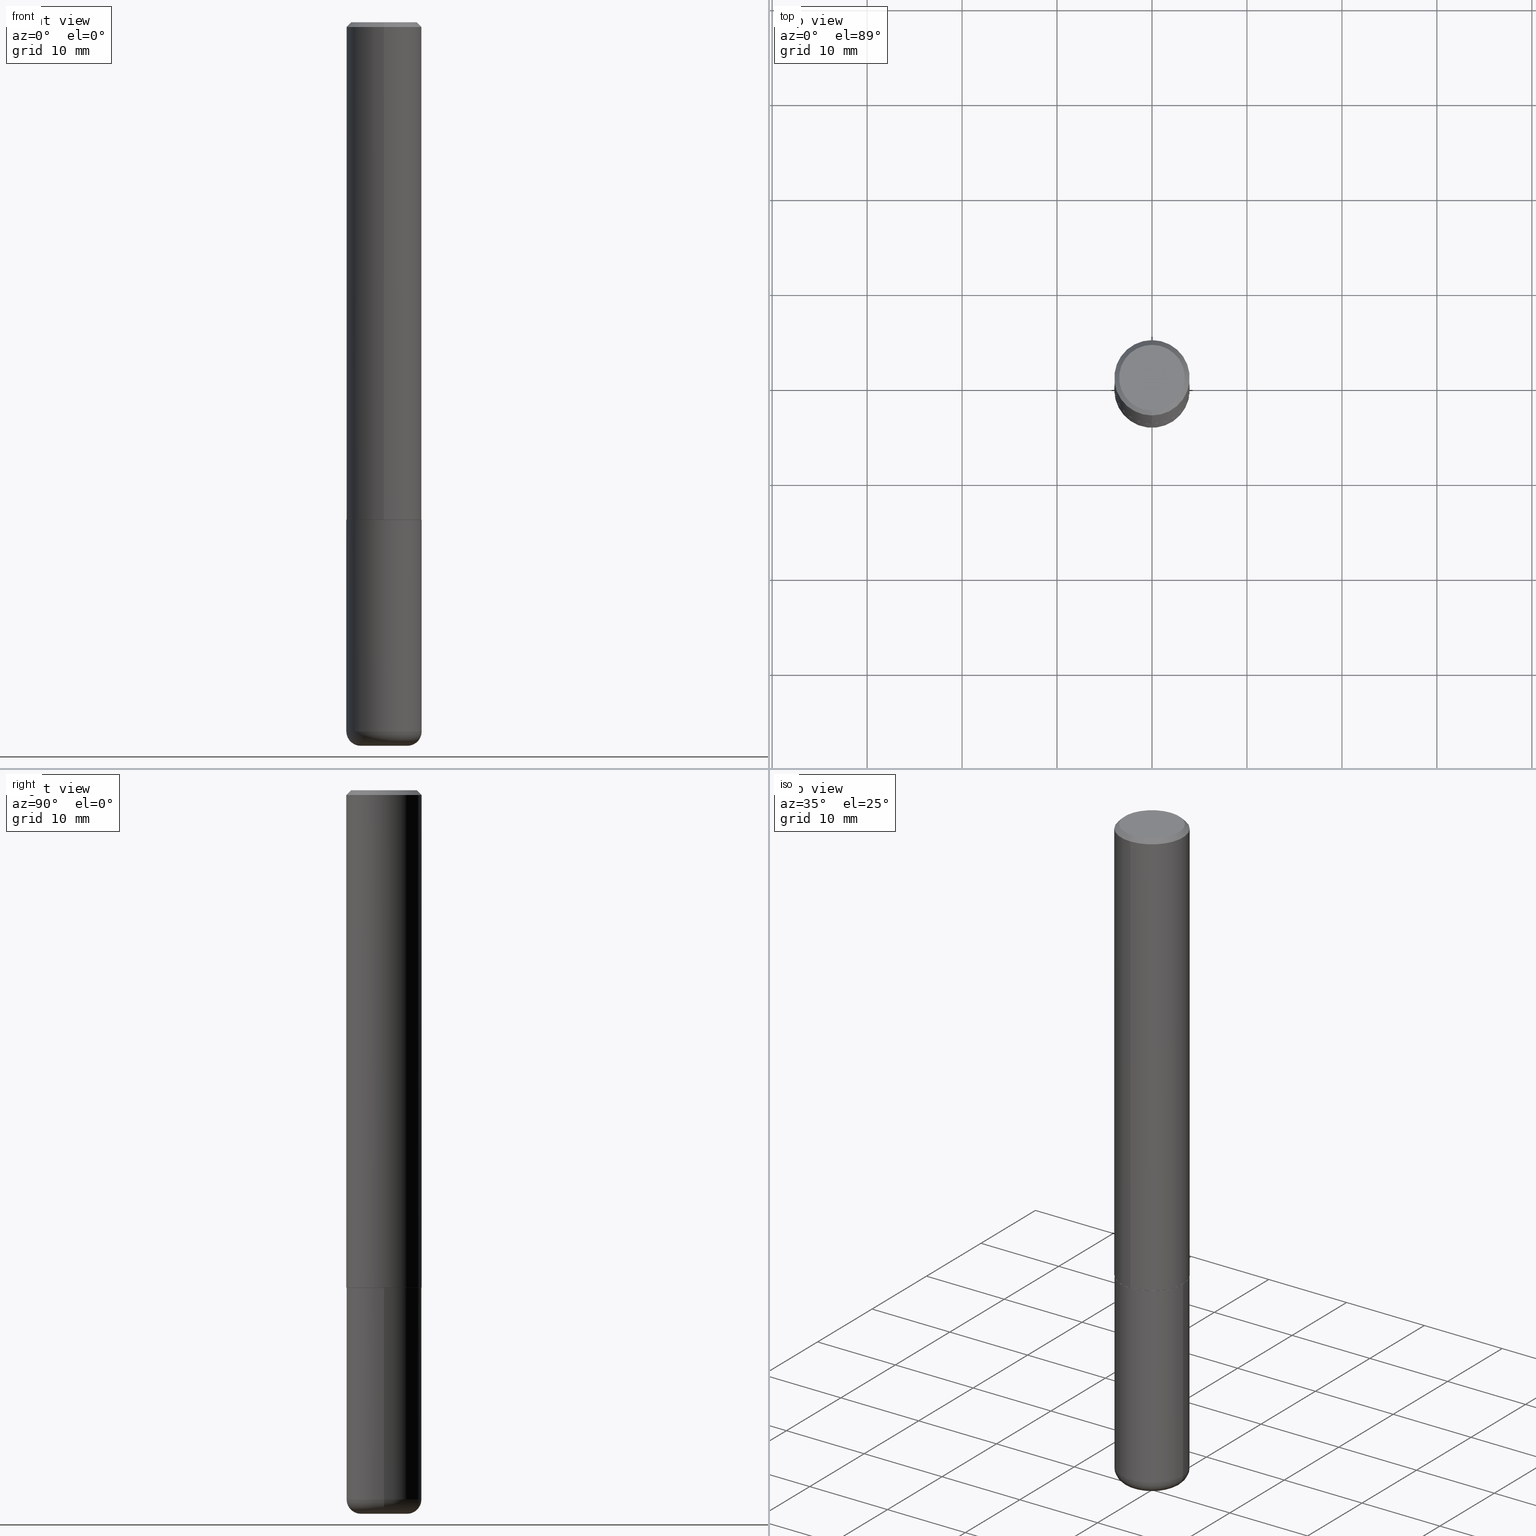
[diagram: canonical four-view strip — front | top / right | iso, engineering-drawing reading convention]
A machine part, canonical four-view strip (front | top / right | iso — engineering-drawing reading convention). The complete STEP part file that produces these views, byte-faithful:
ISO-10303-21;
HEADER;
FILE_DESCRIPTION (( 'STEP AP203' ),
    '1' );
FILE_NAME ('37463.STEP',
    '2024-03-02T01:55:20',
    ( '' ),
    ( '' ),
    'SwSTEP 2.0',
    'SolidWorks 2023',
    '' );
FILE_SCHEMA (( 'CONFIG_CONTROL_DESIGN' ));
ENDSEC;

DATA;
#1 = CIRCLE ( 'NONE', #283, 0.1562500000000000000 ) ;
#2 = AXIS2_PLACEMENT_3D ( 'NONE', #108, #173, #365 ) ;
#3 = PERSON_AND_ORGANIZATION_ROLE ( 'creator' ) ;
#4 = ADVANCED_FACE ( 'NONE', ( #163 ), #45, .F. ) ;
#5 = DATE_AND_TIME ( #9, #321 ) ;
#6 =( LENGTH_UNIT ( ) NAMED_UNIT ( * ) SI_UNIT ( $, .METRE. ) );
#7 = CARTESIAN_POINT ( 'NONE',  ( 5.043175630159489045E-29, -7.202044912408573467E-15, -2.062500000000000000 ) ) ;
#8 = VECTOR ( 'NONE', #264, 39.37007874015748143 ) ;
#9 = CALENDAR_DATE ( 2024, 1, 3 ) ;
#10 = EDGE_CURVE ( 'NONE', #331, #301, #122, .T. ) ;
#11 = PLANE ( 'NONE',  #194 ) ;
#12 = CARTESIAN_POINT ( 'NONE',  ( 5.040730454096381281E-29, -7.198553011844980434E-15, -2.061500000000000110 ) ) ;
#13 = EDGE_LOOP ( 'NONE', ( #408, #228 ) ) ;
#14 = DIRECTION ( 'NONE',  ( 1.000000000000000000, -6.982962677686269077E-15, 0.000000000000000000 ) ) ;
#15 = AXIS2_PLACEMENT_3D ( 'NONE', #292, #364, #333 ) ;
#16 = AXIS2_PLACEMENT_3D ( 'NONE', #272, #401, #80 ) ;
#17 = FACE_OUTER_BOUND ( 'NONE', #13, .T. ) ;
#18 = CARTESIAN_POINT ( 'NONE',  ( 0.09625000000000000222, -1.114655417425673968E-14, -3.000000000000000444 ) ) ;
#19 = ORIENTED_EDGE ( 'NONE', *, *, #10, .T. ) ;
#20 = DIRECTION ( 'NONE',  ( -2.445468806185136597E-29, 3.491481338843145583E-15, 1.000000000000000000 ) ) ;
#21 = LINE ( 'NONE', #343, #340 ) ;
#22 = ORIENTED_EDGE ( 'NONE', *, *, #295, .T. ) ;
#23 = AXIS2_PLACEMENT_3D ( 'NONE', #119, #376, #87 ) ;
#24 = EDGE_CURVE ( 'NONE', #301, #331, #1, .T. ) ;
#25 = AXIS2_PLACEMENT_3D ( 'NONE', #207, #49, #403 ) ;
#26 = PERSON_AND_ORGANIZATION_ROLE ( 'creator' ) ;
#27 = ORIENTED_EDGE ( 'NONE', *, *, #53, .T. ) ;
#28 = ORIENTED_EDGE ( 'NONE', *, *, #184, .T. ) ;
#29 = CARTESIAN_POINT ( 'NONE',  ( 0.1562499999999999722, -1.135604305458732800E-14, -2.940000000000000391 ) ) ;
#30 = AXIS2_PLACEMENT_3D ( 'NONE', #328, #110, #405 ) ;
#31 = CIRCLE ( 'NONE', #16, 0.05999999999999994227 ) ;
#32 = ORIENTED_EDGE ( 'NONE', *, *, #285, .F. ) ;
#33 = ADVANCED_FACE ( 'NONE', ( #298 ), #11, .F. ) ;
#34 = ADVANCED_FACE ( 'NONE', ( #17 ), #62, .F. ) ;
#35 = AXIS2_PLACEMENT_3D ( 'NONE', #12, #267, #396 ) ;
#36 = DIRECTION ( 'NONE',  ( -2.445176063107631214E-29, 3.491900563592034843E-15, 1.000000000000000000 ) ) ;
#37 = CARTESIAN_POINT ( 'NONE',  ( -1.091087918388430659E-15, -0.1562500000000074940, -2.061499999999999666 ) ) ;
#38 = EDGE_CURVE ( 'NONE', #117, #346, #353, .T. ) ;
#39 = DIRECTION ( 'NONE',  ( 2.438088387897960049E-29, -3.491481338843145188E-15, -1.000000000000000000 ) ) ;
#40 = PRODUCT_DEFINITION_FORMATION_WITH_SPECIFIED_SOURCE ( 'ANY', '', #417, .NOT_KNOWN. ) ;
#41 = CARTESIAN_POINT ( 'NONE',  ( 9.514286648347545493E-16, 0.1362500000000001210, -5.205622732494513937E-16 ) ) ;
#42 = VERTEX_POINT ( 'NONE', #137 ) ;
#43 = CARTESIAN_POINT ( 'NONE',  ( 1.106670310946407312E-15, 0.1552499999999928104, -2.062500000000000888 ) ) ;
#44 = ORIENTED_EDGE ( 'NONE', *, *, #24, .T. ) ;
#45 = PLANE ( 'NONE',  #94 ) ;
#46 = DIRECTION ( 'NONE',  ( 6.982962677686265133E-15, 1.000000000000000000, -3.496765431890256920E-15 ) ) ;
#47 = EDGE_LOOP ( 'NONE', ( #32, #19, #315, #192 ) ) ;
#48 = AXIS2_PLACEMENT_3D ( 'NONE', #238, #235, #14 ) ;
#49 = DIRECTION ( 'NONE',  ( -2.445468806185136597E-29, 3.491481338843145583E-15, 1.000000000000000000 ) ) ;
#50 = ORIENTED_EDGE ( 'NONE', *, *, #96, .F. ) ;
#51 = DIRECTION ( 'NONE',  ( -6.982962677686265922E-15, -1.000000000000000000, 3.519288880726909138E-15 ) ) ;
#52 = EDGE_LOOP ( 'NONE', ( #224, #273, #262, #198 ) ) ;
#53 = EDGE_CURVE ( 'NONE', #313, #181, #231, .T. ) ;
#54 = ORIENTED_EDGE ( 'NONE', *, *, #184, .F. ) ;
#55 = APPLICATION_PROTOCOL_DEFINITION ( 'international standard', 'config_control_design', 1994, #223 ) ;
#56 = CYLINDRICAL_SURFACE ( 'NONE', #196, 0.1562500000000000000 ) ;
#57 = EDGE_LOOP ( 'NONE', ( #78, #332, #252, #76 ) ) ;
#58 = APPROVAL ( #393, 'UNSPECIFIED' ) ;
#59 = AXIS2_PLACEMENT_3D ( 'NONE', #107, #209, #361 ) ;
#60 = CARTESIAN_POINT ( 'NONE',  ( 0.09625000000000000222, -1.093706529392615137E-14, -2.940000000000000391 ) ) ;
#61 = CC_DESIGN_PERSON_AND_ORGANIZATION_ASSIGNMENT ( #412, #375, ( #128 ) ) ;
#62 = PLANE ( 'NONE',  #271 ) ;
#63 = PERSON_AND_ORGANIZATION ( #200, #160 ) ;
#64 = CARTESIAN_POINT ( 'NONE',  ( 1.110223024625157329E-15, 0.1562500000000001388, -5.456094630612559989E-16 ) ) ;
#65 = LINE ( 'NONE', #299, #8 ) ;
#66 = CARTESIAN_POINT ( 'NONE',  ( 0.000000000000000000, 0.000000000000000000, 0.000000000000000000 ) ) ;
#67 = VECTOR ( 'NONE', #91, 39.37007874015748854 ) ;
#68 = AXIS2_PLACEMENT_3D ( 'NONE', #116, #93, #239 ) ;
#69 = LOCAL_TIME ( 20, 55, 20.00000000000000000, #359 ) ;
#70 = CARTESIAN_POINT ( 'NONE',  ( 1.091087918388479568E-15, 0.1562499999999999445, -0.02000000000000057981 ) ) ;
#71 = DIRECTION ( 'NONE',  ( -2.445176063107630933E-29, 3.491900563592034843E-15, 1.000000000000000000 ) ) ;
#72 = EDGE_LOOP ( 'NONE', ( #54, #102, #282, #280 ) ) ;
#73 = EDGE_CURVE ( 'NONE', #311, #149, #142, .T. ) ;
#74 = PERSON_AND_ORGANIZATION ( #200, #160 ) ;
#75 = CARTESIAN_POINT ( 'NONE',  ( -0.09625000000000000222, -9.472639372467016689E-15, -3.000000000000000444 ) ) ;
#76 = ORIENTED_EDGE ( 'NONE', *, *, #395, .T. ) ;
#77 = DIRECTION ( 'NONE',  ( 2.445176063107630933E-29, -3.491900563592034843E-15, -1.000000000000000000 ) ) ;
#78 = ORIENTED_EDGE ( 'NONE', *, *, #202, .F. ) ;
#79 = FACE_OUTER_BOUND ( 'NONE', #111, .T. ) ;
#80 = DIRECTION ( 'NONE',  ( -1.000000000000000000, 7.105427357600997914E-15, 0.000000000000000000 ) ) ;
#81 = ADVANCED_FACE ( 'NONE', ( #144 ), #383, .T. ) ;
#82 = APPROVAL_STATUS ( 'not_yet_approved' ) ;
#83 = PERSON_AND_ORGANIZATION_ROLE ( 'design_owner' ) ;
#84 = DIRECTION ( 'NONE',  ( 1.000000000000000000, -6.982962677686265922E-15, 4.883557194083112340E-29 ) ) ;
#85 = ORIENTED_EDGE ( 'NONE', *, *, #246, .T. ) ;
#86 = CARTESIAN_POINT ( 'NONE',  ( 0.000000000000000000, 0.000000000000000000, 0.000000000000000000 ) ) ;
#87 = DIRECTION ( 'NONE',  ( -6.982962677686265922E-15, -1.000000000000000000, 3.491900563592035238E-15 ) ) ;
#88 = SECURITY_CLASSIFICATION_LEVEL ( 'unclassified' ) ;
#89 = ORIENTED_EDGE ( 'NONE', *, *, #347, .F. ) ;
#90 = CARTESIAN_POINT ( 'NONE',  ( 7.336406418555409790E-29, -1.047444401652943635E-14, -3.000000000000000444 ) ) ;
#91 = DIRECTION ( 'NONE',  ( 5.024295867787889629E-15, 0.7071067811865257013, 0.7071067811865691111 ) ) ;
#92 = CC_DESIGN_APPROVAL ( #303, ( #319 ) ) ;
#93 = DIRECTION ( 'NONE',  ( -2.445176063107630933E-29, 3.491900563592034843E-15, 1.000000000000000000 ) ) ;
#94 = AXIS2_PLACEMENT_3D ( 'NONE', #201, #39, #366 ) ;
#95 = CIRCLE ( 'NONE', #2, 0.1562500000000000000 ) ;
#96 = EDGE_CURVE ( 'NONE', #301, #181, #65, .T. ) ;
#97 =( NAMED_UNIT ( * ) PLANE_ANGLE_UNIT ( ) SI_UNIT ( $, .RADIAN. ) );
#98 = FACE_OUTER_BOUND ( 'NONE', #47, .T. ) ;
#99 = TOROIDAL_SURFACE ( 'NONE', #225, 0.09625000000000000222, 0.05999999999999995615 ) ;
#100 = DIRECTION ( 'NONE',  ( -2.445468806185136597E-29, 3.491481338843145583E-15, 1.000000000000000000 ) ) ;
#101 = DIRECTION ( 'NONE',  ( 1.000000000000000000, -6.982962677686266711E-15, 4.876176775795936353E-29 ) ) ;
#102 = ORIENTED_EDGE ( 'NONE', *, *, #221, .T. ) ;
#103 = DIRECTION ( 'NONE',  ( -2.445176063107630933E-29, 3.491900563592034843E-15, 1.000000000000000000 ) ) ;
#104 = AXIS2_PLACEMENT_3D ( 'NONE', #349, #339, #183 ) ;
#105 = AXIS2_PLACEMENT_3D ( 'NONE', #300, #141, #145 ) ;
#106 = PRODUCT_RELATED_PRODUCT_CATEGORY ( 'detail', '', ( #417 ) ) ;
#107 = CARTESIAN_POINT ( 'NONE',  ( 2.190428889620163364E-45, -3.128101894001013777E-31, -8.958164292007245599E-17 ) ) ;
#108 = CARTESIAN_POINT ( 'NONE',  ( 4.890352126215269679E-31, -6.983801127184080238E-17, -0.02000000000000003511 ) ) ;
#109 = EDGE_LOOP ( 'NONE', ( #125, #27 ) ) ;
#110 = DIRECTION ( 'NONE',  ( -2.445176063107630933E-29, 3.491900563592034843E-15, 1.000000000000000000 ) ) ;
#111 = EDGE_LOOP ( 'NONE', ( #44, #269, #89, #50 ) ) ;
#112 = FACE_OUTER_BOUND ( 'NONE', #146, .T. ) ;
#113 = ORIENTED_EDGE ( 'NONE', *, *, #279, .F. ) ;
#114 = CARTESIAN_POINT ( 'NONE',  ( 2.190428889620163364E-45, -3.128101894001013777E-31, -8.958164292007245599E-17 ) ) ;
#115 = MECHANICAL_CONTEXT ( 'NONE', #352, 'mechanical' ) ;
#116 = CARTESIAN_POINT ( 'NONE',  ( 5.043175630159490166E-29, -7.202044912408575044E-15, -2.062500000000000444 ) ) ;
#117 = VERTEX_POINT ( 'NONE', #75 ) ;
#118 = DATE_AND_TIME ( #351, #135 ) ;
#119 = CARTESIAN_POINT ( 'NONE',  ( 0.000000000000000000, 0.000000000000000000, 0.000000000000000000 ) ) ;
#120 = APPROVAL_ROLE ( '' ) ;
#121 = EDGE_CURVE ( 'NONE', #368, #247, #180, .T. ) ;
#122 = CIRCLE ( 'NONE', #380, 0.1562500000000000000 ) ;
#123 = CONICAL_SURFACE ( 'NONE', #167, 0.1562500000000000000, 0.7853981633974469467 ) ;
#124 = COORDINATED_UNIVERSAL_TIME_OFFSET ( 5, 0, .BEHIND. ) ;
#125 = ORIENTED_EDGE ( 'NONE', *, *, #347, .T. ) ;
#126 = ADVANCED_FACE ( 'NONE', ( #392 ), #305, .T. ) ;
#127 = CIRCLE ( 'NONE', #104, 0.1562500000000002776 ) ;
#128 = SECURITY_CLASSIFICATION ( '', '', #88 ) ;
#129 = DATE_TIME_ROLE ( 'creation_date' ) ;
#130 = APPROVAL_DATE_TIME ( #5, #58 ) ;
#131 = EDGE_CURVE ( 'NONE', #149, #233, #212, .T. ) ;
#132 = CALENDAR_DATE ( 2024, 1, 3 ) ;
#133 = DIRECTION ( 'NONE',  ( 1.000000000000000000, -6.982962677686259611E-15, 0.000000000000000000 ) ) ;
#134 = AXIS2_PLACEMENT_3D ( 'NONE', #199, #326, #101 ) ;
#135 = LOCAL_TIME ( 20, 55, 20.00000000000000000, #345 ) ;
#136 = LENGTH_MEASURE_WITH_UNIT ( LENGTH_MEASURE( 0.02539999999999999897 ), #6 );
#137 = CARTESIAN_POINT ( 'NONE',  ( -1.071952812151801215E-15, -0.1562500000000000833, -0.01999999999999948694 ) ) ;
#138 = COORDINATED_UNIVERSAL_TIME_OFFSET ( 5, 0, .BEHIND. ) ;
#139 =( NAMED_UNIT ( * ) SI_UNIT ( $, .STERADIAN. ) SOLID_ANGLE_UNIT ( ) );
#140 = DIRECTION ( 'NONE',  ( -6.982962677686265922E-15, -1.000000000000000000, 3.491900563592035238E-15 ) ) ;
#141 = DIRECTION ( 'NONE',  ( -2.445468806185136597E-29, 3.491481338843145583E-15, 1.000000000000000000 ) ) ;
#142 = LINE ( 'NONE', #270, #166 ) ;
#143 = ORIENTED_EDGE ( 'NONE', *, *, #382, .T. ) ;
#144 = FACE_OUTER_BOUND ( 'NONE', #72, .T. ) ;
#145 = DIRECTION ( 'NONE',  ( 1.000000000000000000, -6.982962677686269077E-15, 0.000000000000000000 ) ) ;
#146 = EDGE_LOOP ( 'NONE', ( #274, #218 ) ) ;
#147 = CARTESIAN_POINT ( 'NONE',  ( 0.1562500000000000000, -8.292268179752468540E-15, -2.062500000000000000 ) ) ;
#148 = DIRECTION ( 'NONE',  ( 1.000000000000000000, -6.982962677686265922E-15, 4.883557194083112340E-29 ) ) ;
#149 = VERTEX_POINT ( 'NONE', #37 ) ;
#150 = EDGE_CURVE ( 'NONE', #368, #193, #240, .T. ) ;
#151 = CARTESIAN_POINT ( 'NONE',  ( 7.189678290184301639E-29, -1.026495513619884961E-14, -2.940000000000000391 ) ) ;
#152 = VERTEX_POINT ( 'NONE', #43 ) ;
#153 = AXIS2_PLACEMENT_3D ( 'NONE', #367, #248, #46 ) ;
#154 = APPROVAL_DATE_TIME ( #217, #256 ) ;
#155 = SHAPE_DEFINITION_REPRESENTATION ( #257, #287 ) ;
#156 = FACE_OUTER_BOUND ( 'NONE', #277, .T. ) ;
#157 = CIRCLE ( 'NONE', #15, 0.1562500000000000000 ) ;
#158 = ORIENTED_EDGE ( 'NONE', *, *, #362, .T. ) ;
#159 = ADVANCED_FACE ( 'NONE', ( #302 ), #99, .T. ) ;
#160 = ORGANIZATION ( 'UNSPECIFIED', 'UNSPECIFIED', '' ) ;
#161 = APPROVAL_STATUS ( 'not_yet_approved' ) ;
#162 = ORIENTED_EDGE ( 'NONE', *, *, #418, .T. ) ;
#163 = FACE_OUTER_BOUND ( 'NONE', #109, .T. ) ;
#164 = COORDINATED_UNIVERSAL_TIME_OFFSET ( 5, 0, .BEHIND. ) ;
#165 = DIRECTION ( 'NONE',  ( -2.445468806185136597E-29, 3.491481338843145583E-15, 1.000000000000000000 ) ) ;
#166 = VECTOR ( 'NONE', #170, 39.37007874015748854 ) ;
#167 = AXIS2_PLACEMENT_3D ( 'NONE', #268, #77, #341 ) ;
#168 = PERSON_AND_ORGANIZATION ( #200, #160 ) ;
#169 = ADVANCED_FACE ( 'NONE', ( #310 ), #379, .T. ) ;
#170 = DIRECTION ( 'NONE',  ( -4.937700262164378437E-15, -0.7071067811865208164, 0.7071067811865739960 ) ) ;
#171 = CARTESIAN_POINT ( 'NONE',  ( -0.1562500000000000000, -7.622844674156262556E-15, -2.062500000000000000 ) ) ;
#172 = ORIENTED_EDGE ( 'NONE', *, *, #131, .F. ) ;
#173 = DIRECTION ( 'NONE',  ( -2.445176063107630933E-29, 3.491900563592034843E-15, 1.000000000000000000 ) ) ;
#174 = ORIENTED_EDGE ( 'NONE', *, *, #221, .F. ) ;
#175 = CARTESIAN_POINT ( 'NONE',  ( 1.021258291611617059E-15, 0.1362500000000001210, -5.653530947094876156E-16 ) ) ;
#176 = MANIFOLD_SOLID_BREP ( 'Body-Move/Copy2[1]', #306 ) ;
#177 = DIRECTION ( 'NONE',  ( 2.438088387897960049E-29, -3.491481338843145188E-15, -1.000000000000000000 ) ) ;
#178 = DIRECTION ( 'NONE',  ( 6.982962677686265922E-15, 1.000000000000000000, -3.491900563592034843E-15 ) ) ;
#179 = CARTESIAN_POINT ( 'NONE',  ( 5.043175630159490166E-29, -7.202044912408575044E-15, -2.062500000000000444 ) ) ;
#180 = CIRCLE ( 'NONE', #59, 0.1362500000000001210 ) ;
#181 = VERTEX_POINT ( 'NONE', #147 ) ;
#182 =( GEOMETRIC_REPRESENTATION_CONTEXT ( 3 ) GLOBAL_UNCERTAINTY_ASSIGNED_CONTEXT ( ( #413 ) ) GLOBAL_UNIT_ASSIGNED_CONTEXT ( ( #293, #97, #139 ) ) REPRESENTATION_CONTEXT ( 'NONE', 'WORKASPACE' ) );
#183 = DIRECTION ( 'NONE',  ( -6.982962677686265922E-15, -1.000000000000000000, 3.496765431890250609E-15 ) ) ;
#184 = EDGE_CURVE ( 'NONE', #152, #233, #222, .T. ) ;
#185 = MANIFOLD_SOLID_BREP ( 'Body-Move/Copy2[2]', #188 ) ;
#186 = CARTESIAN_POINT ( 'NONE',  ( -0.1562499999999999722, -9.154732111573693074E-15, -2.940000000000000391 ) ) ;
#187 = ORIENTED_EDGE ( 'NONE', *, *, #295, .F. ) ;
#188 = CLOSED_SHELL ( 'NONE', ( #316, #126, #309, #377, #169, #81, #33, #34 ) ) ;
#189 = CC_DESIGN_PERSON_AND_ORGANIZATION_ASSIGNMENT ( #312, #251, ( #40 ) ) ;
#190 = PERSON_AND_ORGANIZATION ( #200, #160 ) ;
#191 = EDGE_LOOP ( 'NONE', ( #371, #402, #22, #404 ) ) ;
#192 = ORIENTED_EDGE ( 'NONE', *, *, #53, .F. ) ;
#193 = VERTEX_POINT ( 'NONE', #278 ) ;
#194 = AXIS2_PLACEMENT_3D ( 'NONE', #7, #369, #394 ) ;
#195 = DIRECTION ( 'NONE',  ( -6.982962677686266711E-15, -1.000000000000000000, 3.491481338843145583E-15 ) ) ;
#196 = AXIS2_PLACEMENT_3D ( 'NONE', #275, #219, #215 ) ;
#197 = EDGE_CURVE ( 'NONE', #233, #149, #127, .T. ) ;
#198 = ORIENTED_EDGE ( 'NONE', *, *, #418, .F. ) ;
#199 = CARTESIAN_POINT ( 'NONE',  ( 0.000000000000000000, 0.000000000000000000, 0.000000000000000000 ) ) ;
#200 = PERSON ( 'UNSPECIFIED', 'UNSPECIFIED', 'UNSPECIFIED', ('UNSPECIFIED'), ('UNSPECIFIED'), ('UNSPECIFIED') ) ;
#201 = CARTESIAN_POINT ( 'NONE',  ( 5.043779412756844791E-29, -7.201180261363988578E-15, -2.062500000000000000 ) ) ;
#202 = EDGE_CURVE ( 'NONE', #247, #42, #21, .T. ) ;
#203 = APPROVAL_ROLE ( '' ) ;
#204 = DIRECTION ( 'NONE',  ( -2.445468806185136597E-29, 3.491481338843145583E-15, 1.000000000000000000 ) ) ;
#205 = CIRCLE ( 'NONE', #105, 0.1562500000000000000 ) ;
#206 = DIRECTION ( 'NONE',  ( 4.937700262164540942E-15, 0.7071067811865441310, -0.7071067811865509034 ) ) ;
#207 = CARTESIAN_POINT ( 'NONE',  ( 7.336406418555409790E-29, -1.047444401652943635E-14, -3.000000000000000444 ) ) ;
#208 = ORIENTED_EDGE ( 'NONE', *, *, #73, .F. ) ;
#209 = DIRECTION ( 'NONE',  ( -2.445176063107630933E-29, 3.491900563592034843E-15, 1.000000000000000000 ) ) ;
#210 = CARTESIAN_POINT ( 'NONE',  ( -0.1562500000000000000, 1.110223024625156540E-15, -7.685836078523291160E-30 ) ) ;
#211 = ADVANCED_FACE ( 'NONE', ( #79 ), #56, .T. ) ;
#212 = CIRCLE ( 'NONE', #35, 0.1562500000000002776 ) ;
#213 = ORIENTED_EDGE ( 'NONE', *, *, #246, .F. ) ;
#214 = CONICAL_SURFACE ( 'NONE', #357, 0.1552499999999999991, 0.7853981633974141952 ) ;
#215 = DIRECTION ( 'NONE',  ( 1.000000000000000000, -6.982962677686266711E-15, 4.876176775795936353E-29 ) ) ;
#216 = FACE_OUTER_BOUND ( 'NONE', #286, .T. ) ;
#217 = DATE_AND_TIME ( #254, #384 ) ;
#218 = ORIENTED_EDGE ( 'NONE', *, *, #38, .F. ) ;
#219 = DIRECTION ( 'NONE',  ( -2.445468806185136597E-29, 3.491481338843145583E-15, 1.000000000000000000 ) ) ;
#220 = EDGE_LOOP ( 'NONE', ( #213, #174 ) ) ;
#221 = EDGE_CURVE ( 'NONE', #152, #311, #397, .T. ) ;
#222 = LINE ( 'NONE', #406, #67 ) ;
#223 = APPLICATION_CONTEXT ( 'configuration controlled 3d designs of mechanical parts and assemblies' ) ;
#224 = ORIENTED_EDGE ( 'NONE', *, *, #131, .T. ) ;
#225 = AXIS2_PLACEMENT_3D ( 'NONE', #151, #410, #84 ) ;
#226 = DIRECTION ( 'NONE',  ( 1.000000000000000000, -6.982962677686274599E-15, 0.000000000000000000 ) ) ;
#227 = EDGE_CURVE ( 'NONE', #42, #193, #157, .T. ) ;
#228 = ORIENTED_EDGE ( 'NONE', *, *, #279, .T. ) ;
#229 = APPROVAL_PERSON_ORGANIZATION ( #63, #58, #322 ) ;
#230 = EDGE_CURVE ( 'NONE', #233, #193, #387, .T. ) ;
#231 = CIRCLE ( 'NONE', #48, 0.1562500000000000000 ) ;
#232 = CC_DESIGN_APPROVAL ( #256, ( #128 ) ) ;
#233 = VERTEX_POINT ( 'NONE', #261 ) ;
#234 = CALENDAR_DATE ( 2024, 1, 3 ) ;
#235 = DIRECTION ( 'NONE',  ( -2.445468806185136597E-29, 3.491481338843145583E-15, 1.000000000000000000 ) ) ;
#236 = ADVANCED_FACE ( 'NONE', ( #98 ), #296, .T. ) ;
#237 = LINE ( 'NONE', #324, #258 ) ;
#238 = CARTESIAN_POINT ( 'NONE',  ( 5.043779412756844791E-29, -7.201180261363988578E-15, -2.062500000000000000 ) ) ;
#239 = DIRECTION ( 'NONE',  ( -6.982962677686265922E-15, -1.000000000000000000, 3.519288880726909138E-15 ) ) ;
#240 = LINE ( 'NONE', #70, #289 ) ;
#241 = AXIS2_PLACEMENT_3D ( 'NONE', #66, #389, #140 ) ;
#242 = APPROVAL_PERSON_ORGANIZATION ( #168, #303, #203 ) ;
#243 = EDGE_LOOP ( 'NONE', ( #348, #327, #162, #338 ) ) ;
#244 = ORIENTED_EDGE ( 'NONE', *, *, #24, .F. ) ;
#245 = LINE ( 'NONE', #210, #374 ) ;
#246 = EDGE_CURVE ( 'NONE', #311, #152, #414, .T. ) ;
#247 = VERTEX_POINT ( 'NONE', #409 ) ;
#248 = DIRECTION ( 'NONE',  ( 2.445176063107630933E-29, -3.491900563592034843E-15, -1.000000000000000000 ) ) ;
#249 = CIRCLE ( 'NONE', #297, 0.05999999999999994227 ) ;
#250 = CC_DESIGN_PERSON_AND_ORGANIZATION_ASSIGNMENT ( #386, #26, ( #40 ) ) ;
#251 = PERSON_AND_ORGANIZATION_ROLE ( 'design_supplier' ) ;
#252 = ORIENTED_EDGE ( 'NONE', *, *, #150, .T. ) ;
#253 = DIRECTION ( 'NONE',  ( -2.445176063107630933E-29, 3.491900563592034843E-15, 1.000000000000000000 ) ) ;
#254 = CALENDAR_DATE ( 2024, 1, 3 ) ;
#255 = EDGE_LOOP ( 'NONE', ( #143, #158, #244, #187 ) ) ;
#256 = APPROVAL ( #82, 'UNSPECIFIED' ) ;
#257 = PRODUCT_DEFINITION_SHAPE ( 'NONE', 'NONE',  #319 ) ;
#258 = VECTOR ( 'NONE', #388, 39.37007874015748143 ) ;
#259 = ADVANCED_FACE ( 'NONE', ( #112 ), #378, .T. ) ;
#260 = APPROVAL_DATE_TIME ( #291, #303 ) ;
#261 = CARTESIAN_POINT ( 'NONE',  ( 1.110223024625183362E-15, 0.1562499999999930611, -2.061500000000000554 ) ) ;
#262 = ORIENTED_EDGE ( 'NONE', *, *, #227, .F. ) ;
#263 = CIRCLE ( 'NONE', #318, 0.1362500000000001210 ) ;
#264 = DIRECTION ( 'NONE',  ( -2.445468806185136877E-29, 3.491481338843145188E-15, 1.000000000000000000 ) ) ;
#265 = DATE_AND_TIME ( #234, #69 ) ;
#266 = CARTESIAN_POINT ( 'NONE',  ( 7.189678290184301639E-29, -1.026495513619884961E-14, -2.940000000000000391 ) ) ;
#267 = DIRECTION ( 'NONE',  ( -2.445176063107630933E-29, 3.491900563592034843E-15, 1.000000000000000000 ) ) ;
#268 = CARTESIAN_POINT ( 'NONE',  ( 4.890352126215269679E-31, -6.983801127184080238E-17, -0.02000000000000003511 ) ) ;
#269 = ORIENTED_EDGE ( 'NONE', *, *, #285, .T. ) ;
#270 = CARTESIAN_POINT ( 'NONE',  ( -1.084104955710742475E-15, -0.1552500000000072156, -2.062500000000000000 ) ) ;
#271 = AXIS2_PLACEMENT_3D ( 'NONE', #41, #335, #178 ) ;
#272 = CARTESIAN_POINT ( 'NONE',  ( -0.09625000000000000222, -9.581057753029751986E-15, -2.940000000000000391 ) ) ;
#273 = ORIENTED_EDGE ( 'NONE', *, *, #230, .T. ) ;
#274 = ORIENTED_EDGE ( 'NONE', *, *, #382, .F. ) ;
#275 = CARTESIAN_POINT ( 'NONE',  ( 0.000000000000000000, 0.000000000000000000, 0.000000000000000000 ) ) ;
#276 = FACE_OUTER_BOUND ( 'NONE', #57, .T. ) ;
#277 = EDGE_LOOP ( 'NONE', ( #113, #399, #342, #416 ) ) ;
#278 = CARTESIAN_POINT ( 'NONE',  ( 1.091087918388479568E-15, 0.1562499999999999445, -0.02000000000000057981 ) ) ;
#279 = EDGE_CURVE ( 'NONE', #247, #368, #263, .T. ) ;
#280 = ORIENTED_EDGE ( 'NONE', *, *, #197, .F. ) ;
#281 = CC_DESIGN_APPROVAL ( #58, ( #40 ) ) ;
#282 = ORIENTED_EDGE ( 'NONE', *, *, #73, .T. ) ;
#283 = AXIS2_PLACEMENT_3D ( 'NONE', #266, #165, #398 ) ;
#284 = LOCAL_TIME ( 20, 55, 20.00000000000000000, #138 ) ;
#285 = EDGE_CURVE ( 'NONE', #331, #313, #245, .T. ) ;
#286 = EDGE_LOOP ( 'NONE', ( #85, #28, #172, #208 ) ) ;
#287 = ADVANCED_BREP_SHAPE_REPRESENTATION ( '37463', ( #176, #185, #290 ), #182 ) ;
#288 = CC_DESIGN_PERSON_AND_ORGANIZATION_ASSIGNMENT ( #74, #83, ( #417 ) ) ;
#289 = VECTOR ( 'NONE', #206, 39.37007874015748143 ) ;
#290 = AXIS2_PLACEMENT_3D ( 'NONE', #86, #400, #307 ) ;
#291 = DATE_AND_TIME ( #132, #284 ) ;
#292 = CARTESIAN_POINT ( 'NONE',  ( 4.890352126215269679E-31, -6.983801127184080238E-17, -0.02000000000000003511 ) ) ;
#293 =( CONVERSION_BASED_UNIT ( 'INCH', #136 ) LENGTH_UNIT ( ) NAMED_UNIT ( #323 ) );
#294 = DIRECTION ( 'NONE',  ( 1.000000000000000000, -6.982962677686262766E-15, 0.000000000000000000 ) ) ;
#295 = EDGE_CURVE ( 'NONE', #346, #301, #249, .T. ) ;
#296 = CYLINDRICAL_SURFACE ( 'NONE', #134, 0.1562500000000000000 ) ;
#297 = AXIS2_PLACEMENT_3D ( 'NONE', #60, #195, #226 ) ;
#298 = FACE_OUTER_BOUND ( 'NONE', #220, .T. ) ;
#299 = CARTESIAN_POINT ( 'NONE',  ( 0.1562500000000000000, -1.091087918388479174E-15, 7.619026212181150377E-30 ) ) ;
#300 = CARTESIAN_POINT ( 'NONE',  ( 5.043779412756844791E-29, -7.201180261363988578E-15, -2.062500000000000000 ) ) ;
#301 = VERTEX_POINT ( 'NONE', #29 ) ;
#302 = FACE_OUTER_BOUND ( 'NONE', #255, .T. ) ;
#303 = APPROVAL ( #161, 'UNSPECIFIED' ) ;
#304 = DIRECTION ( 'NONE',  ( -6.982962677686265922E-15, -1.000000000000000000, 3.491900563592034843E-15 ) ) ;
#305 = CYLINDRICAL_SURFACE ( 'NONE', #241, 0.1562500000000001388 ) ;
#306 = CLOSED_SHELL ( 'NONE', ( #211, #159, #4, #236, #385, #259 ) ) ;
#307 = DIRECTION ( 'NONE',  ( 1.000000000000000000, 0.000000000000000000, 0.000000000000000000 ) ) ;
#308 = CARTESIAN_POINT ( 'NONE',  ( 7.189678290184301639E-29, -1.026495513619884961E-14, -2.940000000000000391 ) ) ;
#309 = ADVANCED_FACE ( 'NONE', ( #156 ), #329, .T. ) ;
#310 = FACE_OUTER_BOUND ( 'NONE', #243, .T. ) ;
#311 = VERTEX_POINT ( 'NONE', #344 ) ;
#312 = PERSON_AND_ORGANIZATION ( #200, #160 ) ;
#313 = VERTEX_POINT ( 'NONE', #171 ) ;
#314 = CC_DESIGN_SECURITY_CLASSIFICATION ( #128, ( #40 ) ) ;
#315 = ORIENTED_EDGE ( 'NONE', *, *, #96, .T. ) ;
#316 = ADVANCED_FACE ( 'NONE', ( #216 ), #214, .T. ) ;
#317 = DATE_TIME_ROLE ( 'classification_date' ) ;
#318 = AXIS2_PLACEMENT_3D ( 'NONE', #114, #253, #304 ) ;
#319 = PRODUCT_DEFINITION ( 'UNKNOWN', '', #40, #355 ) ;
#320 = AXIS2_PLACEMENT_3D ( 'NONE', #358, #103, #325 ) ;
#321 = LOCAL_TIME ( 20, 55, 20.00000000000000000, #164 ) ;
#322 = APPROVAL_ROLE ( '' ) ;
#323 = DIMENSIONAL_EXPONENTS ( 1.000000000000000000, 0.000000000000000000, 0.000000000000000000, 0.000000000000000000, 0.000000000000000000, 0.000000000000000000, 0.000000000000000000 ) ;
#324 = CARTESIAN_POINT ( 'NONE',  ( -1.091087918388479962E-15, -0.1562500000000001388, 5.456094630612559989E-16 ) ) ;
#325 = DIRECTION ( 'NONE',  ( -6.982962677686265922E-15, -1.000000000000000000, 3.519288880726909138E-15 ) ) ;
#326 = DIRECTION ( 'NONE',  ( -2.445468806185136597E-29, 3.491481338843145583E-15, 1.000000000000000000 ) ) ;
#327 = ORIENTED_EDGE ( 'NONE', *, *, #197, .T. ) ;
#328 = CARTESIAN_POINT ( 'NONE',  ( 5.043175630159490166E-29, -7.202044912408575044E-15, -2.062500000000000444 ) ) ;
#329 = CONICAL_SURFACE ( 'NONE', #153, 0.1562500000000000000, 0.7853981633974469467 ) ;
#330 = APPROVAL_PERSON_ORGANIZATION ( #190, #256, #120 ) ;
#331 = VERTEX_POINT ( 'NONE', #186 ) ;
#332 = ORIENTED_EDGE ( 'NONE', *, *, #121, .F. ) ;
#333 = DIRECTION ( 'NONE',  ( -6.982962677686265133E-15, -1.000000000000000000, 3.496765431890256920E-15 ) ) ;
#334 = CC_DESIGN_DATE_AND_TIME_ASSIGNMENT ( #265, #129, ( #319 ) ) ;
#335 = DIRECTION ( 'NONE',  ( 2.445176063107630653E-29, -3.491900563592034843E-15, -1.000000000000000000 ) ) ;
#336 = FACE_OUTER_BOUND ( 'NONE', #191, .T. ) ;
#337 = CARTESIAN_POINT ( 'NONE',  ( 7.336406418555409790E-29, -1.047444401652943635E-14, -3.000000000000000444 ) ) ;
#338 = ORIENTED_EDGE ( 'NONE', *, *, #395, .F. ) ;
#339 = DIRECTION ( 'NONE',  ( -2.445176063107630933E-29, 3.491900563592034843E-15, 1.000000000000000000 ) ) ;
#340 = VECTOR ( 'NONE', #373, 39.37007874015748143 ) ;
#341 = DIRECTION ( 'NONE',  ( 6.982962677686265133E-15, 1.000000000000000000, -3.496765431890256920E-15 ) ) ;
#342 = ORIENTED_EDGE ( 'NONE', *, *, #227, .T. ) ;
#343 = CARTESIAN_POINT ( 'NONE',  ( -1.071952812151801215E-15, -0.1562500000000000833, -0.01999999999999948694 ) ) ;
#344 = CARTESIAN_POINT ( 'NONE',  ( -1.084104955710742475E-15, -0.1552500000000072156, -2.062500000000000000 ) ) ;
#345 = COORDINATED_UNIVERSAL_TIME_OFFSET ( 5, 0, .BEHIND. ) ;
#346 = VERTEX_POINT ( 'NONE', #18 ) ;
#347 = EDGE_CURVE ( 'NONE', #181, #313, #205, .T. ) ;
#348 = ORIENTED_EDGE ( 'NONE', *, *, #230, .F. ) ;
#349 = CARTESIAN_POINT ( 'NONE',  ( 5.040730454096381281E-29, -7.198553011844980434E-15, -2.061500000000000110 ) ) ;
#350 = TOROIDAL_SURFACE ( 'NONE', #390, 0.09625000000000000222, 0.05999999999999995615 ) ;
#351 = CALENDAR_DATE ( 2024, 1, 3 ) ;
#352 = APPLICATION_CONTEXT ( 'configuration controlled 3d designs of mechanical parts and assemblies' ) ;
#353 = CIRCLE ( 'NONE', #363, 0.09625000000000000222 ) ;
#354 = CC_DESIGN_PERSON_AND_ORGANIZATION_ASSIGNMENT ( #391, #3, ( #319 ) ) ;
#355 = DESIGN_CONTEXT ( 'detailed design', #223, 'design' ) ;
#356 = VECTOR ( 'NONE', #36, 39.37007874015748143 ) ;
#357 = AXIS2_PLACEMENT_3D ( 'NONE', #179, #71, #51 ) ;
#358 = CARTESIAN_POINT ( 'NONE',  ( 5.043175630159490166E-29, -7.202044912408575044E-15, -2.062500000000000444 ) ) ;
#359 = COORDINATED_UNIVERSAL_TIME_OFFSET ( 5, 0, .BEHIND. ) ;
#360 = CARTESIAN_POINT ( 'NONE',  ( 7.189678290184301639E-29, -1.026495513619884961E-14, -2.940000000000000391 ) ) ;
#361 = DIRECTION ( 'NONE',  ( -6.982962677686265922E-15, -1.000000000000000000, 3.491900563592034843E-15 ) ) ;
#362 = EDGE_CURVE ( 'NONE', #117, #331, #31, .T. ) ;
#363 = AXIS2_PLACEMENT_3D ( 'NONE', #337, #204, #133 ) ;
#364 = DIRECTION ( 'NONE',  ( -2.445176063107630933E-29, 3.491900563592034843E-15, 1.000000000000000000 ) ) ;
#365 = DIRECTION ( 'NONE',  ( -6.982962677686265133E-15, -1.000000000000000000, 3.496765431890256920E-15 ) ) ;
#366 = DIRECTION ( 'NONE',  ( -1.000000000000000000, 6.982962677686265922E-15, -4.876176775795935793E-29 ) ) ;
#367 = CARTESIAN_POINT ( 'NONE',  ( 4.890352126215269679E-31, -6.983801127184080238E-17, -0.02000000000000003511 ) ) ;
#368 = VERTEX_POINT ( 'NONE', #175 ) ;
#369 = DIRECTION ( 'NONE',  ( -2.445176063107630653E-29, 3.491900563592034843E-15, 1.000000000000000000 ) ) ;
#370 = DIRECTION ( 'NONE',  ( -1.000000000000000000, 6.982962677686265922E-15, -4.876176775795935793E-29 ) ) ;
#371 = ORIENTED_EDGE ( 'NONE', *, *, #362, .F. ) ;
#372 = APPLICATION_PROTOCOL_DEFINITION ( 'international standard', 'config_control_design', 1994, #352 ) ;
#373 = DIRECTION ( 'NONE',  ( -4.851104656540957175E-15, -0.7071067811865490160, -0.7071067811865460184 ) ) ;
#374 = VECTOR ( 'NONE', #381, 39.37007874015748143 ) ;
#375 = PERSON_AND_ORGANIZATION_ROLE ( 'classification_officer' ) ;
#376 = DIRECTION ( 'NONE',  ( -2.445176063107630933E-29, 3.491900563592034843E-15, 1.000000000000000000 ) ) ;
#377 = ADVANCED_FACE ( 'NONE', ( #276 ), #123, .T. ) ;
#378 = PLANE ( 'NONE',  #407 ) ;
#379 = CYLINDRICAL_SURFACE ( 'NONE', #23, 0.1562500000000001388 ) ;
#380 = AXIS2_PLACEMENT_3D ( 'NONE', #360, #100, #294 ) ;
#381 = DIRECTION ( 'NONE',  ( -2.445468806185136877E-29, 3.491481338843145188E-15, 1.000000000000000000 ) ) ;
#382 = EDGE_CURVE ( 'NONE', #346, #117, #415, .T. ) ;
#383 = CONICAL_SURFACE ( 'NONE', #320, 0.1552499999999999991, 0.7853981633974141952 ) ;
#384 = LOCAL_TIME ( 20, 55, 20.00000000000000000, #124 ) ;
#385 = ADVANCED_FACE ( 'NONE', ( #336 ), #350, .T. ) ;
#386 = PERSON_AND_ORGANIZATION ( #200, #160 ) ;
#387 = LINE ( 'NONE', #64, #356 ) ;
#388 = DIRECTION ( 'NONE',  ( -2.445176063107631214E-29, 3.491900563592034843E-15, 1.000000000000000000 ) ) ;
#389 = DIRECTION ( 'NONE',  ( -2.445176063107630933E-29, 3.491900563592034843E-15, 1.000000000000000000 ) ) ;
#390 = AXIS2_PLACEMENT_3D ( 'NONE', #308, #20, #148 ) ;
#391 = PERSON_AND_ORGANIZATION ( #200, #160 ) ;
#392 = FACE_OUTER_BOUND ( 'NONE', #52, .T. ) ;
#393 = APPROVAL_STATUS ( 'not_yet_approved' ) ;
#394 = DIRECTION ( 'NONE',  ( -6.982962677686265922E-15, -1.000000000000000000, 3.491900563592034843E-15 ) ) ;
#395 = EDGE_CURVE ( 'NONE', #193, #42, #95, .T. ) ;
#396 = DIRECTION ( 'NONE',  ( -6.982962677686265922E-15, -1.000000000000000000, 3.496765431890250609E-15 ) ) ;
#397 = CIRCLE ( 'NONE', #68, 0.1552499999999999991 ) ;
#398 = DIRECTION ( 'NONE',  ( 1.000000000000000000, -6.982962677686262766E-15, 0.000000000000000000 ) ) ;
#399 = ORIENTED_EDGE ( 'NONE', *, *, #202, .T. ) ;
#400 = DIRECTION ( 'NONE',  ( 0.000000000000000000, 0.000000000000000000, 1.000000000000000000 ) ) ;
#401 = DIRECTION ( 'NONE',  ( 7.105427357601001859E-15, 1.000000000000000000, -3.491481338843145583E-15 ) ) ;
#402 = ORIENTED_EDGE ( 'NONE', *, *, #38, .T. ) ;
#403 = DIRECTION ( 'NONE',  ( 1.000000000000000000, -6.982962677686259611E-15, 0.000000000000000000 ) ) ;
#404 = ORIENTED_EDGE ( 'NONE', *, *, #10, .F. ) ;
#405 = DIRECTION ( 'NONE',  ( -6.982962677686265922E-15, -1.000000000000000000, 3.519288880726909138E-15 ) ) ;
#406 = CARTESIAN_POINT ( 'NONE',  ( 1.103117597267605822E-15, 0.1552499999999928104, -2.062500000000000888 ) ) ;
#407 = AXIS2_PLACEMENT_3D ( 'NONE', #90, #177, #370 ) ;
#408 = ORIENTED_EDGE ( 'NONE', *, *, #121, .T. ) ;
#409 = CARTESIAN_POINT ( 'NONE',  ( -1.003347832174086672E-15, -0.1362500000000001210, 3.861898088693426789E-16 ) ) ;
#410 = DIRECTION ( 'NONE',  ( -2.445468806185136597E-29, 3.491481338843145583E-15, 1.000000000000000000 ) ) ;
#411 = CC_DESIGN_DATE_AND_TIME_ASSIGNMENT ( #118, #317, ( #128 ) ) ;
#412 = PERSON_AND_ORGANIZATION ( #200, #160 ) ;
#413 = UNCERTAINTY_MEASURE_WITH_UNIT (LENGTH_MEASURE( 1.000000000000000082E-05 ), #293, 'distance_accuracy_value', 'NONE');
#414 = CIRCLE ( 'NONE', #30, 0.1552499999999999991 ) ;
#415 = CIRCLE ( 'NONE', #25, 0.09625000000000000222 ) ;
#416 = ORIENTED_EDGE ( 'NONE', *, *, #150, .F. ) ;
#417 = PRODUCT ( '37463', '37463', '', ( #115 ) ) ;
#418 = EDGE_CURVE ( 'NONE', #149, #42, #237, .T. ) ;
ENDSEC;
END-ISO-10303-21;
